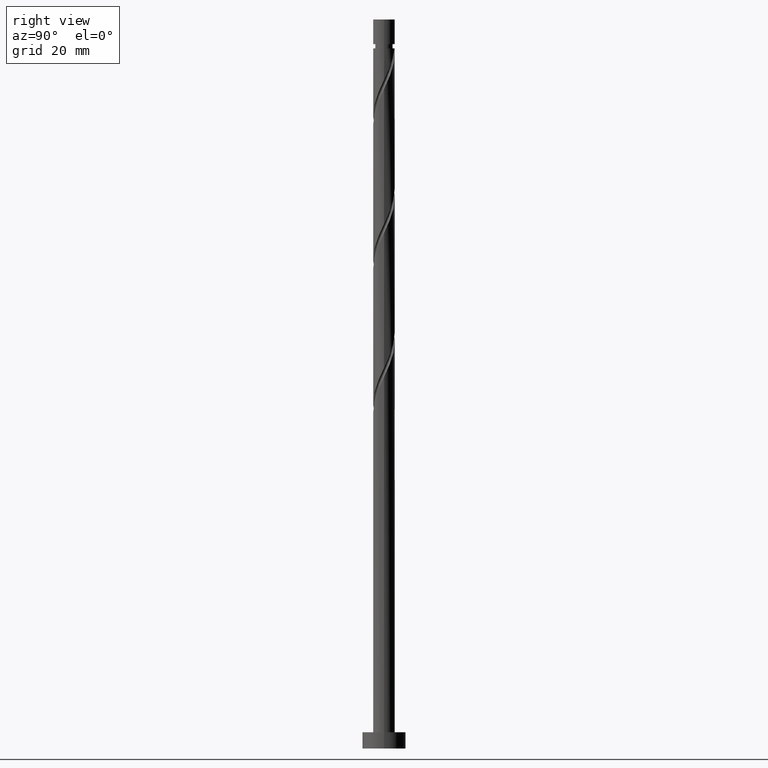
[diagram: clean part render]
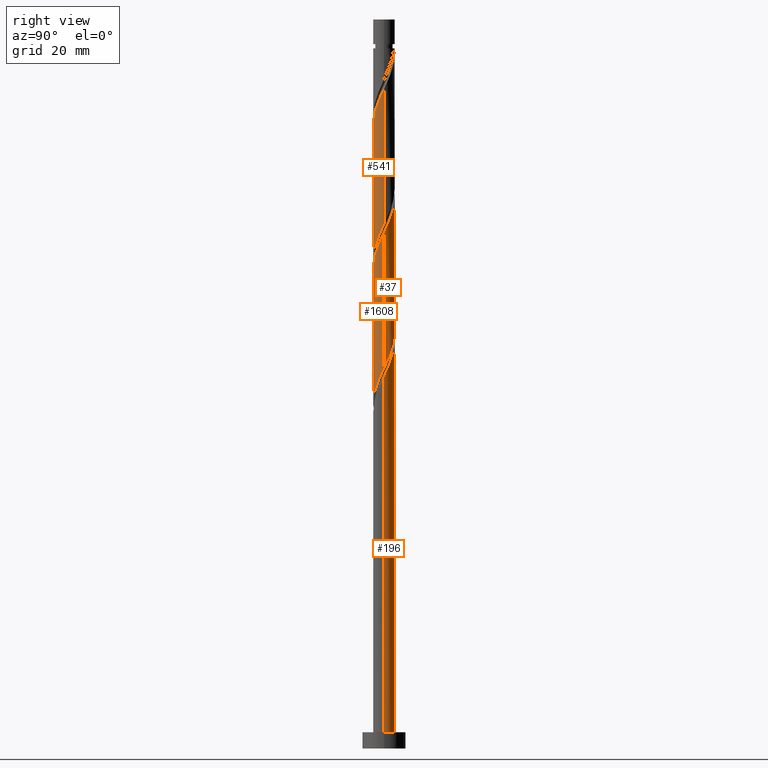
[diagram: same view with one multi-face feature highlighted, each face labeled with its STEP entity id]
A machine part, right view. The highlighted faces form ONE feature: a constant-radius fillet chain: 4 tangent blend faces with common blend radius 2 mm. The faces share edges in the B-rep.
Their STEP definitions:
[1] entity #541 (Cylinder):
#20 = CARTESIAN_POINT ( 'NONE',  ( 1.948211798543802997, -0.4521844623765091109, 121.1738523423620109 ) ) ;
#36 = EDGE_CURVE ( 'NONE', #1003, #450, #98, .T. ) ;
#40 = CARTESIAN_POINT ( 'NONE',  ( 1.741900447066339730, -0.9827425057002956432, 119.9617311302407927 ) ) ;
#63 = CARTESIAN_POINT ( 'NONE',  ( 0.7248413235775366115, -1.864029252891264532, 92.08294325145293158 ) ) ;
#88 = CARTESIAN_POINT ( 'NONE',  ( -0.1161895186125006946, -2.017223038501449128, 90.26476143327111856 ) ) ;
#98 =( BOUNDED_CURVE ( )  B_SPLINE_CURVE ( 2, ( #824, #1105, #1250, #566, #179, #834, #1354, #1229, #205, #961, #63, #1473, #1338, #88, #471, #717, #100, #1238, #983, #340, #1078, #849, #1366, #694, #185 ),
 .UNSPECIFIED., .F., .T. ) 
 B_SPLINE_CURVE_WITH_KNOTS ( ( 3, 2, 2, 2, 2, 2, 2, 2, 2, 2, 2, 2, 3 ),
 ( 0.5545252162417515507, 0.5568181818181817677, 0.5681818181818182323, 0.5795454545454545858, 0.5909090909090909394, 0.6022727272727272929, 0.6136363636363636465, 0.6250000000000000000, 0.6363636363636363535, 0.6477272727272727071, 0.6590909090909090606, 0.6704545454545454142, 0.6795252162417514397 ),
 .UNSPECIFIED. ) 
 CURVE ( )  GEOMETRIC_REPRESENTATION_ITEM ( )  RATIONAL_B_SPLINE_CURVE ( ( 0.9061101570135574601, 0.9072237824201395684, 0.9090909090909168322, 0.8998376744372191816, 0.9090909090909168322, 0.8998376744372191816, 0.9090909090909168322, 0.8998376744372191816, 0.9090909090909168322, 0.8998376744372191816, 0.9090909090909168322, 0.8998376744372191816, 0.9090909090909168322, 0.8998376744372191816, 0.9090909090909168322, 0.8998376744372191816, 0.9090909090909168322, 0.8998376744372191816, 0.9090909090909168322, 0.8998376744372191816, 0.9090909090909168322, 0.8998376744372191816, 0.9090909090909168322, 0.9017048011079965564, 0.9061101570135573491 ) ) 
 REPRESENTATION_ITEM ( '' )  );
#100 = CARTESIAN_POINT ( 'NONE',  ( -0.9340691933046015860, -1.768478086411955363, 88.44657961508927713 ) ) ;
#156 = CARTESIAN_POINT ( 'NONE',  ( -1.996690616564942733, -0.1150068768444763023, 109.0526402211499288 ) ) ;
#173 = CARTESIAN_POINT ( 'NONE',  ( 0.9340691933046018081, -1.768478086411957806, 117.5374887059984133 ) ) ;
#179 = CARTESIAN_POINT ( 'NONE',  ( 1.883409435608316862, -0.6728810428757543427, 95.71930688781655761 ) ) ;
#185 = CARTESIAN_POINT ( 'NONE',  ( -2.000000000000000888, 1.420897966832164405E-15, 83.84148863984472655 ) ) ;
#205 = CARTESIAN_POINT ( 'NONE',  ( 1.220637884402354656, -1.584311571365223825, 93.29506446357416394 ) ) ;
#212 = CARTESIAN_POINT ( 'NONE',  ( 2.000000000000003553, 8.375819593957977622E-16, 122.1425796812429780 ) ) ;
#218 = DIRECTION ( 'NONE',  ( -0.000000000000000000, -0.000000000000000000, -1.000000000000000000 ) ) ;
#235 = CARTESIAN_POINT ( 'NONE',  ( 2.000000000000000000, 2.449293598294706414E-16, 135.0000000000000000 ) ) ;
#281 = CARTESIAN_POINT ( 'NONE',  ( 0.6798004310727959743, -1.902776961498555020, 116.9314280999377900 ) ) ;
#287 = CARTESIAN_POINT ( 'NONE',  ( -0.1703224295138033306, -1.992734370156876933, 115.1132462817559627 ) ) ;
#293 = CARTESIAN_POINT ( 'NONE',  ( -0.4568343776401068146, -1.968245701812303627, 114.5071856756953821 ) ) ;
#340 = CARTESIAN_POINT ( 'NONE',  ( -1.600603406160404862, -1.233189980288573295, 86.62839779690752096 ) ) ;
#402 = CARTESIAN_POINT ( 'NONE',  ( 0.3979949748426478973, -1.960000000000003073, 116.3253674938771809 ) ) ;
#411 = CARTESIAN_POINT ( 'NONE',  ( 2.000000000000003109, -0.2290578547702452894, 121.6566197282716928 ) ) ;
#418 = CARTESIAN_POINT ( 'NONE',  ( -1.786663747202084984, -0.9436744384215546289, 110.8708220393317418 ) ) ;
#437 = FACE_OUTER_BOUND ( 'NONE', #1443, .T. ) ;
#450 = VERTEX_POINT ( 'NONE', #947 ) ;
#471 = CARTESIAN_POINT ( 'NONE',  ( -0.3979949748426481193, -1.960000000000000409, 89.65870082721049528 ) ) ;
#541 = ADVANCED_FACE ( 'NONE', ( #437 ), #962, .T. ) ;
#548 = CARTESIAN_POINT ( 'NONE',  ( -2.000000000000000000, 0.000000000000000000, 135.0000000000000000 ) ) ;
#566 = CARTESIAN_POINT ( 'NONE',  ( 1.980155124014551626, -0.4020876473299551668, 96.32536749387718089 ) ) ;
#652 = CARTESIAN_POINT ( 'NONE',  ( 0.1161895186124999452, -2.017223038501450905, 115.7193068878165718 ) ) ;
#666 = CARTESIAN_POINT ( 'NONE',  ( 1.394470680848407973, -1.433684595806968387, 118.7496099181195888 ) ) ;
#677 = CARTESIAN_POINT ( 'NONE',  ( 2.000000000000003553, 8.375819593957977622E-16, 122.1425796812429780 ) ) ;
#681 =( BOUNDED_CURVE ( )  B_SPLINE_CURVE ( 2, ( #786, #1305, #156, #1420, #1570, #418, #1058, #1067, #1563, #1586, #1578, #293, #287, #652, #402, #281, #173, #1436, #666, #1307, #40, #1314, #20, #411, #677 ),
 .UNSPECIFIED., .F., .T. ) 
 B_SPLINE_CURVE_WITH_KNOTS ( ( 3, 2, 2, 2, 2, 2, 2, 2, 2, 2, 2, 2, 3 ),
 ( 0.5545252162417513286, 0.5568181818181818787, 0.5681818181818181213, 0.5795454545454545858, 0.5909090909090908283, 0.6022727272727272929, 0.6136363636363636465, 0.6250000000000000000, 0.6363636363636363535, 0.6477272727272727071, 0.6590909090909091717, 0.6704545454545454142, 0.6795252162417514397 ),
 .UNSPECIFIED. ) 
 CURVE ( )  GEOMETRIC_REPRESENTATION_ITEM ( )  RATIONAL_B_SPLINE_CURVE ( ( 0.9061101570135619010, 0.9072237824201441203, 0.9090909090909216062, 0.8998376744372238445, 0.9090909090909216062, 0.8998376744372238445, 0.9090909090909216062, 0.8998376744372238445, 0.9090909090909216062, 0.8998376744372238445, 0.9090909090909216062, 0.8998376744372238445, 0.9090909090909216062, 0.8998376744372238445, 0.9090909090909216062, 0.8998376744372238445, 0.9090909090909216062, 0.8998376744372238445, 0.9090909090909216062, 0.8998376744372238445, 0.9090909090909216062, 0.8998376744372238445, 0.9090909090909216062, 0.9017048011080013303, 0.9061101570135620120 ) ) 
 REPRESENTATION_ITEM ( '' )  );
#694 = CARTESIAN_POINT ( 'NONE',  ( -2.000000000000001332, -0.2290578547702424306, 84.32744859281602601 ) ) ;
#717 = CARTESIAN_POINT ( 'NONE',  ( -0.6798004310727958632, -1.902776961498552355, 89.05264022114992883 ) ) ;
#741 = ORIENTED_EDGE ( 'NONE', *, *, #36, .F. ) ;
#762 = CARTESIAN_POINT ( 'NONE',  ( -2.000000000000002665, 1.854645767233552216E-15, 108.8092463479096494 ) ) ;
#786 = CARTESIAN_POINT ( 'NONE',  ( -2.000000000000002665, 1.854645767233552216E-15, 108.8092463479096494 ) ) ;
#824 = CARTESIAN_POINT ( 'NONE',  ( 2.000000000000000444, -1.854645767233561682E-15, 97.17482197317805515 ) ) ;
#834 = CARTESIAN_POINT ( 'NONE',  ( 1.786663747202082542, -0.9436744384215538517, 95.11324628175596274 ) ) ;
#842 = DIRECTION ( 'NONE',  ( -0.000000000000000000, -0.000000000000000000, -1.000000000000000000 ) ) ;
#849 = CARTESIAN_POINT ( 'NONE',  ( -1.883197487972271933, -0.7322950311120145495, 85.41627658478623175 ) ) ;
#850 = DIRECTION ( 'NONE',  ( -1.000000000000000000, 0.000000000000000000, 0.000000000000000000 ) ) ;
#917 = CARTESIAN_POINT ( 'NONE',  ( 2.000000000000000444, -1.854645767233561682E-15, 97.17482197317805515 ) ) ;
#947 = CARTESIAN_POINT ( 'NONE',  ( -2.000000000000000888, 1.420897966832164405E-15, 83.84148863984472655 ) ) ;
#961 = CARTESIAN_POINT ( 'NONE',  ( 0.9928482695149674075, -1.759812803970228101, 92.68900385751351223 ) ) ;
#962 = CYLINDRICAL_SURFACE ( 'NONE', #1512, 2.000000000000000000 ) ;
#965 = LINE ( 'NONE', #235, #1341 ) ;
#983 = CARTESIAN_POINT ( 'NONE',  ( -1.394470680848406197, -1.433684595806965723, 87.23445840296807319 ) ) ;
#992 = ORIENTED_EDGE ( 'NONE', *, *, #1625, .F. ) ;
#1003 = VERTEX_POINT ( 'NONE', #917 ) ;
#1030 = DIRECTION ( 'NONE',  ( -0.000000000000000000, -0.000000000000000000, -1.000000000000000000 ) ) ;
#1031 = ORIENTED_EDGE ( 'NONE', *, *, #1219, .F. ) ;
#1058 = CARTESIAN_POINT ( 'NONE',  ( -1.617545623245914443, -1.176242388590887922, 111.4768826453923083 ) ) ;
#1067 = CARTESIAN_POINT ( 'NONE',  ( -1.448427499289744347, -1.408810338760221770, 112.0829432514529174 ) ) ;
#1078 = CARTESIAN_POINT ( 'NONE',  ( -1.741900447066338176, -0.9827425057002938669, 86.02233719084684083 ) ) ;
#1079 = EDGE_CURVE ( 'NONE', #1454, #450, #1433, .T. ) ;
#1105 = CARTESIAN_POINT ( 'NONE',  ( 2.000000000000000000, -0.05755105304765150559, 97.05272396845982996 ) ) ;
#1203 = ORIENTED_EDGE ( 'NONE', *, *, #1079, .T. ) ;
#1215 = VECTOR ( 'NONE', #1030, 1000.000000000000000 ) ;
#1219 = EDGE_CURVE ( 'NONE', #1454, #1646, #681, .T. ) ;
#1229 = CARTESIAN_POINT ( 'NONE',  ( 1.448427499289742570, -1.408810338760219549, 93.90112506963474459 ) ) ;
#1238 = CARTESIAN_POINT ( 'NONE',  ( -1.188337955536407531, -1.634179211325359038, 87.84051900902868226 ) ) ;
#1250 = CARTESIAN_POINT ( 'NONE',  ( 1.996690616564939846, -0.1150068768444769546, 96.93142809993777576 ) ) ;
#1305 = CARTESIAN_POINT ( 'NONE',  ( -2.000000000000002665, -0.05755105304764292218, 108.9313443526278604 ) ) ;
#1307 = CARTESIAN_POINT ( 'NONE',  ( 1.600603406160406417, -1.233189980288575516, 119.3556705241802405 ) ) ;
#1314 = CARTESIAN_POINT ( 'NONE',  ( 1.883197487972273931, -0.7322950311120155487, 120.5677917363014302 ) ) ;
#1338 = CARTESIAN_POINT ( 'NONE',  ( 0.1703224295138023869, -1.992734370156875157, 90.87082203933172764 ) ) ;
#1341 = VECTOR ( 'NONE', #842, 1000.000000000000000 ) ;
#1354 = CARTESIAN_POINT ( 'NONE',  ( 1.617545623245912001, -1.176242388590886812, 94.50718567569533946 ) ) ;
#1366 = CARTESIAN_POINT ( 'NONE',  ( -1.948211798543800111, -0.4521844623765081117, 84.81021597872566531 ) ) ;
#1420 = CARTESIAN_POINT ( 'NONE',  ( -1.980155124014554291, -0.4020876473299550002, 109.6587008272104953 ) ) ;
#1433 = LINE ( 'NONE', #548, #1215 ) ;
#1436 = CARTESIAN_POINT ( 'NONE',  ( 1.188337955536409085, -1.634179211325361036, 118.1435493120590081 ) ) ;
#1443 = EDGE_LOOP ( 'NONE', ( #992, #1031, #1203, #741 ) ) ;
#1454 = VERTEX_POINT ( 'NONE', #762 ) ;
#1473 = CARTESIAN_POINT ( 'NONE',  ( 0.4568343776401063705, -1.968245701812300963, 91.47688264539233671 ) ) ;
#1498 = CARTESIAN_POINT ( 'NONE',  ( 0.000000000000000000, 0.000000000000000000, 135.0000000000000000 ) ) ;
#1512 = AXIS2_PLACEMENT_3D ( 'NONE', #1498, #218, #850 ) ;
#1563 = CARTESIAN_POINT ( 'NONE',  ( -1.220637884402356432, -1.584311571365225157, 112.6890038575135407 ) ) ;
#1570 = CARTESIAN_POINT ( 'NONE',  ( -1.883409435608319304, -0.6728810428757545647, 110.2647614332711328 ) ) ;
#1578 = CARTESIAN_POINT ( 'NONE',  ( -0.7248413235775381658, -1.864029252891266308, 113.9011250696347588 ) ) ;
#1586 = CARTESIAN_POINT ( 'NONE',  ( -0.9928482695149695170, -1.759812803970229433, 113.2950644635741355 ) ) ;
#1625 = EDGE_CURVE ( 'NONE', #1646, #1003, #965, .T. ) ;
#1646 = VERTEX_POINT ( 'NONE', #212 ) ;
[2] entity #37 (Cylinder):
#37 = ADVANCED_FACE ( 'NONE', ( #729 ), #77, .T. ) ;
#49 = CARTESIAN_POINT ( 'NONE',  ( 2.000000000000000444, -1.854645767233561682E-15, 70.50815530651139795 ) ) ;
#56 = VERTEX_POINT ( 'NONE', #1116 ) ;
#77 = CYLINDRICAL_SURFACE ( 'NONE', #809, 2.000000000000000000 ) ;
#129 = LINE ( 'NONE', #628, #272 ) ;
#155 = CARTESIAN_POINT ( 'NONE',  ( 0.3979949748426483414, 1.960000000000000409, 76.32536749387719510 ) ) ;
#157 = ORIENTED_EDGE ( 'NONE', *, *, #813, .F. ) ;
#165 = ORIENTED_EDGE ( 'NONE', *, *, #255, .F. ) ;
#233 = CARTESIAN_POINT ( 'NONE',  ( -0.1161895186124996815, 2.017223038501450905, 102.3859735544832432 ) ) ;
#238 = CARTESIAN_POINT ( 'NONE',  ( -1.883409435608316862, 0.6728810428757542317, 82.38597355448325743 ) ) ;
#255 = EDGE_CURVE ( 'NONE', #450, #1240, #604, .T. ) ;
#267 = DIRECTION ( 'NONE',  ( -0.000000000000000000, -0.000000000000000000, -1.000000000000000000 ) ) ;
#272 = VECTOR ( 'NONE', #267, 1000.000000000000000 ) ;
#332 = CARTESIAN_POINT ( 'NONE',  ( 0.4568343776401070921, 1.968245701812303627, 101.1738523423620393 ) ) ;
#356 = CARTESIAN_POINT ( 'NONE',  ( 1.883409435608319304, 0.6728810428757541207, 96.93142809993778997 ) ) ;
#362 = CARTESIAN_POINT ( 'NONE',  ( -1.980155124014551626, 0.4020876473299547782, 82.99203416054385229 ) ) ;
#384 = CARTESIAN_POINT ( 'NONE',  ( 1.188337955536407531, 1.634179211325359038, 74.50718567569538209 ) ) ;
#396 = CARTESIAN_POINT ( 'NONE',  ( -0.4568343776401060374, 1.968245701812300963, 78.14354931205900812 ) ) ;
#450 = VERTEX_POINT ( 'NONE', #947 ) ;
#475 = CARTESIAN_POINT ( 'NONE',  ( -2.000000000000002665, 0.2290578547702481760, 108.3232863949383216 ) ) ;
#485 = CARTESIAN_POINT ( 'NONE',  ( -1.741900447066339730, 0.9827425057002954212, 106.6283977969074925 ) ) ;
#491 =( BOUNDED_CURVE ( )  B_SPLINE_CURVE ( 2, ( #1502, #1088, #1342, #853, #356, #975, #607, #1371, #1648, #828, #1489, #332, #1478, #233, #734, #840, #865, #1609, #596, #1641, #485, #818, #585, #475, #1382 ),
 .UNSPECIFIED., .F., .T. ) 
 B_SPLINE_CURVE_WITH_KNOTS ( ( 3, 2, 2, 2, 2, 2, 2, 2, 2, 2, 2, 2, 3 ),
 ( 0.4295252162417512731, 0.4318181818181817677, 0.4431818181818182323, 0.4545454545454545858, 0.4659090909090909394, 0.4772727272727272929, 0.4886363636363636465, 0.5000000000000000000, 0.5113636363636363535, 0.5227272727272727071, 0.5340909090909091717, 0.5454545454545454142, 0.5545252162417513286 ),
 .UNSPECIFIED. ) 
 CURVE ( )  GEOMETRIC_REPRESENTATION_ITEM ( )  RATIONAL_B_SPLINE_CURVE ( ( 0.9061101570135619010, 0.9072237824201440093, 0.9090909090909216062, 0.8998376744372238445, 0.9090909090909216062, 0.8998376744372238445, 0.9090909090909216062, 0.8998376744372238445, 0.9090909090909216062, 0.8998376744372238445, 0.9090909090909216062, 0.8998376744372238445, 0.9090909090909216062, 0.8998376744372238445, 0.9090909090909216062, 0.8998376744372238445, 0.9090909090909216062, 0.8998376744372238445, 0.9090909090909216062, 0.8998376744372238445, 0.9090909090909216062, 0.8998376744372238445, 0.9090909090909216062, 0.9017048011080013303, 0.9061101570135619010 ) ) 
 REPRESENTATION_ITEM ( '' )  );
#510 = CARTESIAN_POINT ( 'NONE',  ( 1.741900447066338176, 0.9827425057002943110, 72.68900385751352644 ) ) ;
#540 = CARTESIAN_POINT ( 'NONE',  ( 2.000000000000001332, 0.2290578547702417644, 70.99411525948271162 ) ) ;
#548 = CARTESIAN_POINT ( 'NONE',  ( -2.000000000000000000, 0.000000000000000000, 135.0000000000000000 ) ) ;
#585 = CARTESIAN_POINT ( 'NONE',  ( -1.948211798543802109, 0.4521844623765092774, 107.8405190090286965 ) ) ;
#596 = CARTESIAN_POINT ( 'NONE',  ( -1.394470680848407973, 1.433684595806968387, 105.4162765847862460 ) ) ;
#602 = DIRECTION ( 'NONE',  ( -0.000000000000000000, -0.000000000000000000, -1.000000000000000000 ) ) ;
#604 =( BOUNDED_CURVE ( )  B_SPLINE_CURVE ( 2, ( #739, #1260, #614, #362, #238, #623, #1653, #1138, #1009, #1158, #890, #396, #1568, #1035, #155, #915, #1191, #384, #1547, #1423, #510, #655, #1282, #540, #775 ),
 .UNSPECIFIED., .F., .T. ) 
 B_SPLINE_CURVE_WITH_KNOTS ( ( 3, 2, 2, 2, 2, 2, 2, 2, 2, 2, 2, 2, 3 ),
 ( 0.6795252162417514397, 0.6818181818181817677, 0.6931818181818182323, 0.7045454545454545858, 0.7159090909090909394, 0.7272727272727272929, 0.7386363636363636465, 0.7500000000000000000, 0.7613636363636363535, 0.7727272727272727071, 0.7840909090909090606, 0.7954545454545454142, 0.8045252162417514397 ),
 .UNSPECIFIED. ) 
 CURVE ( )  GEOMETRIC_REPRESENTATION_ITEM ( )  RATIONAL_B_SPLINE_CURVE ( ( 0.9061101570135573491, 0.9072237824201394574, 0.9090909090909168322, 0.8998376744372191816, 0.9090909090909168322, 0.8998376744372191816, 0.9090909090909168322, 0.8998376744372191816, 0.9090909090909168322, 0.8998376744372191816, 0.9090909090909168322, 0.8998376744372191816, 0.9090909090909168322, 0.8998376744372191816, 0.9090909090909168322, 0.8998376744372191816, 0.9090909090909168322, 0.8998376744372191816, 0.9090909090909168322, 0.8998376744372191816, 0.9090909090909168322, 0.8998376744372191816, 0.9090909090909168322, 0.9017048011079965564, 0.9061101570135573491 ) ) 
 REPRESENTATION_ITEM ( '' )  );
#607 = CARTESIAN_POINT ( 'NONE',  ( 1.617545623245914665, 1.176242388590887034, 98.14354931205896548 ) ) ;
#614 = CARTESIAN_POINT ( 'NONE',  ( -1.996690616564940512, 0.1150068768444766493, 83.59809476660447558 ) ) ;
#623 = CARTESIAN_POINT ( 'NONE',  ( -1.786663747202082542, 0.9436744384215538517, 81.77991294842263414 ) ) ;
#628 = CARTESIAN_POINT ( 'NONE',  ( 2.000000000000000000, 2.449293598294706414E-16, 135.0000000000000000 ) ) ;
#655 = CARTESIAN_POINT ( 'NONE',  ( 1.883197487972272155, 0.7322950311120136613, 72.08294325145293158 ) ) ;
#729 = FACE_OUTER_BOUND ( 'NONE', #1252, .T. ) ;
#734 = CARTESIAN_POINT ( 'NONE',  ( -0.3979949748426476752, 1.960000000000003073, 102.9920341605438523 ) ) ;
#739 = CARTESIAN_POINT ( 'NONE',  ( -2.000000000000000888, 1.420897966832164405E-15, 83.84148863984472655 ) ) ;
#762 = CARTESIAN_POINT ( 'NONE',  ( -2.000000000000002665, 1.854645767233552216E-15, 108.8092463479096494 ) ) ;
#775 = CARTESIAN_POINT ( 'NONE',  ( 2.000000000000000444, -1.854645767233561682E-15, 70.50815530651139795 ) ) ;
#809 = AXIS2_PLACEMENT_3D ( 'NONE', #1637, #602, #1596 ) ;
#813 = EDGE_CURVE ( 'NONE', #56, #1454, #491, .T. ) ;
#818 = CARTESIAN_POINT ( 'NONE',  ( -1.883197487972273709, 0.7322950311120159927, 107.2344584029680874 ) ) ;
#828 = CARTESIAN_POINT ( 'NONE',  ( 0.9928482695149686288, 1.759812803970229877, 99.96173113024086376 ) ) ;
#840 = CARTESIAN_POINT ( 'NONE',  ( -0.6798004310727963073, 1.902776961498554353, 103.5980947666044614 ) ) ;
#853 = CARTESIAN_POINT ( 'NONE',  ( 1.980155124014554291, 0.4020876473299547227, 96.32536749387720931 ) ) ;
#862 = ORIENTED_EDGE ( 'NONE', *, *, #1079, .F. ) ;
#865 = CARTESIAN_POINT ( 'NONE',  ( -0.9340691933046023632, 1.768478086411957362, 104.2041553726650420 ) ) ;
#890 = CARTESIAN_POINT ( 'NONE',  ( -0.7248413235775366115, 1.864029252891264532, 78.74960991811960298 ) ) ;
#915 = CARTESIAN_POINT ( 'NONE',  ( 0.6798004310727960853, 1.902776961498552355, 75.71930688781654339 ) ) ;
#940 = EDGE_CURVE ( 'NONE', #56, #1240, #129, .T. ) ;
#947 = CARTESIAN_POINT ( 'NONE',  ( -2.000000000000000888, 1.420897966832164405E-15, 83.84148863984472655 ) ) ;
#975 = CARTESIAN_POINT ( 'NONE',  ( 1.786663747202085872, 0.9436744384215539627, 97.53748870599839904 ) ) ;
#1009 = CARTESIAN_POINT ( 'NONE',  ( -1.220637884402354656, 1.584311571365223825, 79.96173113024080692 ) ) ;
#1030 = DIRECTION ( 'NONE',  ( -0.000000000000000000, -0.000000000000000000, -1.000000000000000000 ) ) ;
#1035 = CARTESIAN_POINT ( 'NONE',  ( 0.1161895186125001117, 2.017223038501448684, 76.93142809993776154 ) ) ;
#1079 = EDGE_CURVE ( 'NONE', #1454, #450, #1433, .T. ) ;
#1088 = CARTESIAN_POINT ( 'NONE',  ( 2.000000000000003553, 0.05755105304764360219, 95.59801101929453182 ) ) ;
#1116 = CARTESIAN_POINT ( 'NONE',  ( 2.000000000000003553, 8.375819593957977622E-16, 95.47591301457629243 ) ) ;
#1138 = CARTESIAN_POINT ( 'NONE',  ( -1.448427499289741904, 1.408810338760219993, 80.56779173630143021 ) ) ;
#1158 = CARTESIAN_POINT ( 'NONE',  ( -0.9928482695149676296, 1.759812803970227879, 79.35567052418022627 ) ) ;
#1191 = CARTESIAN_POINT ( 'NONE',  ( 0.9340691933046018081, 1.768478086411955363, 75.11324628175599116 ) ) ;
#1215 = VECTOR ( 'NONE', #1030, 1000.000000000000000 ) ;
#1240 = VERTEX_POINT ( 'NONE', #49 ) ;
#1252 = EDGE_LOOP ( 'NONE', ( #157, #1380, #165, #862 ) ) ;
#1260 = CARTESIAN_POINT ( 'NONE',  ( -2.000000000000000888, 0.05755105304764834839, 83.71939063512651558 ) ) ;
#1282 = CARTESIAN_POINT ( 'NONE',  ( 1.948211798543800111, 0.4521844623765076121, 71.47688264539230829 ) ) ;
#1342 = CARTESIAN_POINT ( 'NONE',  ( 1.996690616564942733, 0.1150068768444760664, 95.71930688781657182 ) ) ;
#1371 = CARTESIAN_POINT ( 'NONE',  ( 1.448427499289745013, 1.408810338760220882, 98.74960991811961719 ) ) ;
#1380 = ORIENTED_EDGE ( 'NONE', *, *, #940, .T. ) ;
#1382 = CARTESIAN_POINT ( 'NONE',  ( -2.000000000000002665, 1.854645767233552216E-15, 108.8092463479096494 ) ) ;
#1423 = CARTESIAN_POINT ( 'NONE',  ( 1.600603406160404418, 1.233189980288573517, 73.29506446357413552 ) ) ;
#1433 = LINE ( 'NONE', #548, #1215 ) ;
#1454 = VERTEX_POINT ( 'NONE', #762 ) ;
#1478 = CARTESIAN_POINT ( 'NONE',  ( 0.1703224295138035527, 1.992734370156876933, 101.7799129484226199 ) ) ;
#1489 = CARTESIAN_POINT ( 'NONE',  ( 0.7248413235775373886, 1.864029252891266530, 100.5677917363014302 ) ) ;
#1502 = CARTESIAN_POINT ( 'NONE',  ( 2.000000000000003553, 8.375819593957977622E-16, 95.47591301457629243 ) ) ;
#1547 = CARTESIAN_POINT ( 'NONE',  ( 1.394470680848405975, 1.433684595806966389, 73.90112506963474459 ) ) ;
#1568 = CARTESIAN_POINT ( 'NONE',  ( -0.1703224295138029143, 1.992734370156874713, 77.53748870599835641 ) ) ;
#1596 = DIRECTION ( 'NONE',  ( -1.000000000000000000, 0.000000000000000000, 0.000000000000000000 ) ) ;
#1609 = CARTESIAN_POINT ( 'NONE',  ( -1.188337955536408863, 1.634179211325361480, 104.8102159787256795 ) ) ;
#1637 = CARTESIAN_POINT ( 'NONE',  ( 0.000000000000000000, 0.000000000000000000, 135.0000000000000000 ) ) ;
#1641 = CARTESIAN_POINT ( 'NONE',  ( -1.600603406160406639, 1.233189980288575072, 106.0223371908468835 ) ) ;
#1648 = CARTESIAN_POINT ( 'NONE',  ( 1.220637884402356210, 1.584311571365225380, 99.35567052418019784 ) ) ;
#1653 = CARTESIAN_POINT ( 'NONE',  ( -1.617545623245912001, 1.176242388590886812, 81.17385234236199665 ) ) ;
[3] entity #1608 (Cylinder):
#33 = CARTESIAN_POINT ( 'NONE',  ( 0.1703224295138023869, -1.992734370156875157, 64.20415537266505623 ) ) ;
#49 = CARTESIAN_POINT ( 'NONE',  ( 2.000000000000000444, -1.854645767233561682E-15, 70.50815530651139795 ) ) ;
#56 = VERTEX_POINT ( 'NONE', #1116 ) ;
#71 = VERTEX_POINT ( 'NONE', #430 ) ;
#111 = CARTESIAN_POINT ( 'NONE',  ( -0.4568343776401068146, -1.968245701812303627, 87.84051900902869647 ) ) ;
#117 = CYLINDRICAL_SURFACE ( 'NONE', #1538, 2.000000000000000000 ) ;
#122 = CARTESIAN_POINT ( 'NONE',  ( 0.9340691933046018081, -1.768478086411957806, 90.87082203933172764 ) ) ;
#129 = LINE ( 'NONE', #628, #272 ) ;
#143 = CARTESIAN_POINT ( 'NONE',  ( -1.394470680848406197, -1.433684595806965723, 60.56779173630140889 ) ) ;
#160 = CARTESIAN_POINT ( 'NONE',  ( -2.000000000000003109, 4.636614418083881526E-15, 82.14257968124296383 ) ) ;
#186 = VECTOR ( 'NONE', #1143, 1000.000000000000000 ) ;
#234 = CARTESIAN_POINT ( 'NONE',  ( -0.1703224295138033306, -1.992734370156876933, 88.44657961508927713 ) ) ;
#253 = CARTESIAN_POINT ( 'NONE',  ( 0.4568343776401063705, -1.968245701812300963, 64.81021597872565110 ) ) ;
#257 = CARTESIAN_POINT ( 'NONE',  ( -1.980155124014554291, -0.4020876473299550002, 82.99203416054388072 ) ) ;
#260 = CARTESIAN_POINT ( 'NONE',  ( -0.6798004310727958632, -1.902776961498552355, 62.38597355448322190 ) ) ;
#267 = DIRECTION ( 'NONE',  ( -0.000000000000000000, -0.000000000000000000, -1.000000000000000000 ) ) ;
#272 = VECTOR ( 'NONE', #267, 1000.000000000000000 ) ;
#275 = CARTESIAN_POINT ( 'NONE',  ( 1.617545623245912001, -1.176242388590886812, 67.84051900902866805 ) ) ;
#345 = CARTESIAN_POINT ( 'NONE',  ( 0.1161895186124999452, -2.017223038501450905, 89.05264022114991462 ) ) ;
#357 = CARTESIAN_POINT ( 'NONE',  ( 1.741900447066339730, -0.9827425057002956432, 93.29506446357416394 ) ) ;
#366 = CARTESIAN_POINT ( 'NONE',  ( 1.948211798543802997, -0.4521844623765091109, 94.50718567569532524 ) ) ;
#371 = CARTESIAN_POINT ( 'NONE',  ( -1.996690616564942733, -0.1150068768444763023, 82.38597355448324322 ) ) ;
#376 = CARTESIAN_POINT ( 'NONE',  ( -1.188337955536407531, -1.634179211325359038, 61.17385234236201796 ) ) ;
#380 = CARTESIAN_POINT ( 'NONE',  ( -1.617545623245914443, -1.176242388590887922, 84.81021597872566531 ) ) ;
#430 = CARTESIAN_POINT ( 'NONE',  ( -2.000000000000000888, 1.420897966832164405E-15, 57.17482197317807646 ) ) ;
#466 = CARTESIAN_POINT ( 'NONE',  ( -1.448427499289744347, -1.408810338760221770, 85.41627658478626017 ) ) ;
#509 = CARTESIAN_POINT ( 'NONE',  ( 0.7248413235775366115, -1.864029252891264532, 65.41627658478627438 ) ) ;
#542 = CARTESIAN_POINT ( 'NONE',  ( -2.000000000000000000, -0.2290578547702478984, 57.66078192614936881 ) ) ;
#598 = FACE_OUTER_BOUND ( 'NONE', #1604, .T. ) ;
#608 = CARTESIAN_POINT ( 'NONE',  ( 2.000000000000003109, -0.2290578547702472045, 94.98995306160499297 ) ) ;
#616 = ORIENTED_EDGE ( 'NONE', *, *, #1014, .F. ) ;
#628 = CARTESIAN_POINT ( 'NONE',  ( 2.000000000000000000, 2.449293598294706414E-16, 135.0000000000000000 ) ) ;
#640 = CARTESIAN_POINT ( 'NONE',  ( 0.3979949748426478973, -1.960000000000003073, 89.65870082721050949 ) ) ;
#670 = CARTESIAN_POINT ( 'NONE',  ( 1.448427499289742570, -1.408810338760219549, 67.23445840296807319 ) ) ;
#731 = VERTEX_POINT ( 'NONE', #160 ) ;
#744 = CARTESIAN_POINT ( 'NONE',  ( 0.6798004310727959743, -1.902776961498555020, 90.26476143327110435 ) ) ;
#752 = DIRECTION ( 'NONE',  ( -0.000000000000000000, -0.000000000000000000, -1.000000000000000000 ) ) ;
#766 = CARTESIAN_POINT ( 'NONE',  ( 1.786663747202082542, -0.9436744384215538517, 68.44657961508927713 ) ) ;
#773 = CARTESIAN_POINT ( 'NONE',  ( 1.220637884402354656, -1.584311571365223825, 66.62839779690747832 ) ) ;
#782 = CARTESIAN_POINT ( 'NONE',  ( 0.9928482695149674075, -1.759812803970228101, 66.02233719084688346 ) ) ;
#785 = CARTESIAN_POINT ( 'NONE',  ( 2.000000000000000444, -1.854645767233561682E-15, 70.50815530651139795 ) ) ;
#793 =( BOUNDED_CURVE ( )  B_SPLINE_CURVE ( 2, ( #1278, #1006, #371, #257, #1503, #1263, #380, #466, #866, #1521, #1383, #111, #234, #345, #640, #744, #122, #881, #1408, #1513, #357, #1656, #366, #608, #875 ),
 .UNSPECIFIED., .F., .T. ) 
 B_SPLINE_CURVE_WITH_KNOTS ( ( 3, 2, 2, 2, 2, 2, 2, 2, 2, 2, 2, 2, 3 ),
 ( 0.3045252162417511621, 0.3068181818181817677, 0.3181818181818182323, 0.3295454545454545858, 0.3409090909090909394, 0.3522727272727272929, 0.3636363636363636465, 0.3750000000000000000, 0.3863636363636363535, 0.3977272727272727071, 0.4090909090909090606, 0.4204545454545454142, 0.4295252162417512731 ),
 .UNSPECIFIED. ) 
 CURVE ( )  GEOMETRIC_REPRESENTATION_ITEM ( )  RATIONAL_B_SPLINE_CURVE ( ( 0.9061101570135616790, 0.9072237824201438983, 0.9090909090909216062, 0.8998376744372238445, 0.9090909090909216062, 0.8998376744372238445, 0.9090909090909216062, 0.8998376744372238445, 0.9090909090909216062, 0.8998376744372238445, 0.9090909090909216062, 0.8998376744372238445, 0.9090909090909216062, 0.8998376744372238445, 0.9090909090909216062, 0.8998376744372238445, 0.9090909090909216062, 0.8998376744372238445, 0.9090909090909216062, 0.8998376744372238445, 0.9090909090909216062, 0.8998376744372238445, 0.9090909090909216062, 0.9017048011080013303, 0.9061101570135619010 ) ) 
 REPRESENTATION_ITEM ( '' )  );
#838 = ORIENTED_EDGE ( 'NONE', *, *, #1414, .F. ) ;
#866 = CARTESIAN_POINT ( 'NONE',  ( -1.220637884402356432, -1.584311571365225157, 86.02233719084685504 ) ) ;
#867 = DIRECTION ( 'NONE',  ( -1.000000000000000000, 0.000000000000000000, 0.000000000000000000 ) ) ;
#875 = CARTESIAN_POINT ( 'NONE',  ( 2.000000000000003553, 8.375819593957977622E-16, 95.47591301457629243 ) ) ;
#881 = CARTESIAN_POINT ( 'NONE',  ( 1.188337955536409085, -1.634179211325361036, 91.47688264539233671 ) ) ;
#887 = CARTESIAN_POINT ( 'NONE',  ( -1.600603406160404862, -1.233189980288573295, 59.96173113024080692 ) ) ;
#940 = EDGE_CURVE ( 'NONE', #56, #1240, #129, .T. ) ;
#1006 = CARTESIAN_POINT ( 'NONE',  ( -2.000000000000003553, -0.05755105304764096541, 82.26467768596117480 ) ) ;
#1014 = EDGE_CURVE ( 'NONE', #1240, #71, #1064, .T. ) ;
#1042 = CARTESIAN_POINT ( 'NONE',  ( 1.980155124014551626, -0.4020876473299551668, 69.65870082721049528 ) ) ;
#1064 =( BOUNDED_CURVE ( )  B_SPLINE_CURVE ( 2, ( #785, #1559, #1428, #1042, #1156, #766, #275, #670, #773, #782, #509, #253, #33, #1189, #1412, #260, #1292, #376, #143, #887, #1405, #1175, #1442, #542, #1321 ),
 .UNSPECIFIED., .F., .T. ) 
 B_SPLINE_CURVE_WITH_KNOTS ( ( 3, 2, 2, 2, 2, 2, 2, 2, 2, 2, 2, 2, 3 ),
 ( 0.8045252162417514397, 0.8068181818181817677, 0.8181818181818182323, 0.8295454545454545858, 0.8409090909090909394, 0.8522727272727272929, 0.8636363636363636465, 0.8750000000000000000, 0.8863636363636363535, 0.8977272727272727071, 0.9090909090909090606, 0.9204545454545454142, 0.9295252162417512176 ),
 .UNSPECIFIED. ) 
 CURVE ( )  GEOMETRIC_REPRESENTATION_ITEM ( )  RATIONAL_B_SPLINE_CURVE ( ( 0.9061101570135573491, 0.9072237824201394574, 0.9090909090909168322, 0.8998376744372191816, 0.9090909090909168322, 0.8998376744372191816, 0.9090909090909168322, 0.8998376744372191816, 0.9090909090909168322, 0.8998376744372191816, 0.9090909090909168322, 0.8998376744372191816, 0.9090909090909168322, 0.8998376744372191816, 0.9090909090909168322, 0.8998376744372191816, 0.9090909090909168322, 0.8998376744372191816, 0.9090909090909168322, 0.8998376744372191816, 0.9090909090909168322, 0.8998376744372191816, 0.9090909090909168322, 0.9017048011079967784, 0.9061101570135571270 ) ) 
 REPRESENTATION_ITEM ( '' )  );
#1116 = CARTESIAN_POINT ( 'NONE',  ( 2.000000000000003553, 8.375819593957977622E-16, 95.47591301457629243 ) ) ;
#1133 = CARTESIAN_POINT ( 'NONE',  ( -2.000000000000000000, 0.000000000000000000, 135.0000000000000000 ) ) ;
#1143 = DIRECTION ( 'NONE',  ( -0.000000000000000000, -0.000000000000000000, -1.000000000000000000 ) ) ;
#1156 = CARTESIAN_POINT ( 'NONE',  ( 1.883409435608316862, -0.6728810428757543427, 69.05264022114991462 ) ) ;
#1161 = ORIENTED_EDGE ( 'NONE', *, *, #940, .F. ) ;
#1175 = CARTESIAN_POINT ( 'NONE',  ( -1.883197487972271933, -0.7322950311120145495, 58.74960991811958166 ) ) ;
#1189 = CARTESIAN_POINT ( 'NONE',  ( -0.1161895186125006946, -2.017223038501449128, 63.59809476660445426 ) ) ;
#1240 = VERTEX_POINT ( 'NONE', #49 ) ;
#1263 = CARTESIAN_POINT ( 'NONE',  ( -1.786663747202084984, -0.9436744384215546289, 84.20415537266507044 ) ) ;
#1271 = LINE ( 'NONE', #1133, #186 ) ;
#1278 = CARTESIAN_POINT ( 'NONE',  ( -2.000000000000003109, 4.636614418083881526E-15, 82.14257968124296383 ) ) ;
#1292 = CARTESIAN_POINT ( 'NONE',  ( -0.9340691933046015860, -1.768478086411955363, 61.77991294842264836 ) ) ;
#1321 = CARTESIAN_POINT ( 'NONE',  ( -2.000000000000000888, 1.420897966832164405E-15, 57.17482197317806936 ) ) ;
#1340 = ORIENTED_EDGE ( 'NONE', *, *, #1571, .T. ) ;
#1383 = CARTESIAN_POINT ( 'NONE',  ( -0.7248413235775381658, -1.864029252891266308, 87.23445840296807319 ) ) ;
#1405 = CARTESIAN_POINT ( 'NONE',  ( -1.741900447066338176, -0.9827425057002938669, 59.35567052418021206 ) ) ;
#1408 = CARTESIAN_POINT ( 'NONE',  ( 1.394470680848407973, -1.433684595806968387, 92.08294325145294579 ) ) ;
#1412 = CARTESIAN_POINT ( 'NONE',  ( -0.3979949748426481193, -1.960000000000000409, 62.99203416054384519 ) ) ;
#1414 = EDGE_CURVE ( 'NONE', #731, #56, #793, .T. ) ;
#1428 = CARTESIAN_POINT ( 'NONE',  ( 1.996690616564939846, -0.1150068768444769546, 70.26476143327111856 ) ) ;
#1442 = CARTESIAN_POINT ( 'NONE',  ( -1.948211798543800111, -0.4521844623765081117, 58.14354931205898680 ) ) ;
#1503 = CARTESIAN_POINT ( 'NONE',  ( -1.883409435608319304, -0.6728810428757545647, 83.59809476660446137 ) ) ;
#1513 = CARTESIAN_POINT ( 'NONE',  ( 1.600603406160406417, -1.233189980288575516, 92.68900385751354065 ) ) ;
#1521 = CARTESIAN_POINT ( 'NONE',  ( -0.9928482695149695170, -1.759812803970229433, 86.62839779690749253 ) ) ;
#1538 = AXIS2_PLACEMENT_3D ( 'NONE', #1658, #752, #867 ) ;
#1559 = CARTESIAN_POINT ( 'NONE',  ( 2.000000000000000444, -0.05755105304764873697, 70.38605730179320119 ) ) ;
#1571 = EDGE_CURVE ( 'NONE', #731, #71, #1271, .T. ) ;
#1604 = EDGE_LOOP ( 'NONE', ( #1161, #838, #1340, #616 ) ) ;
#1608 = ADVANCED_FACE ( 'NONE', ( #598 ), #117, .T. ) ;
#1656 = CARTESIAN_POINT ( 'NONE',  ( 1.883197487972273931, -0.7322950311120155487, 93.90112506963474459 ) ) ;
#1658 = CARTESIAN_POINT ( 'NONE',  ( 0.000000000000000000, 0.000000000000000000, 135.0000000000000000 ) ) ;
[4] entity #196 (Cylinder):
#1 = CARTESIAN_POINT ( 'NONE',  ( 2.000000000000003553, 0.05755105304764360219, 68.93134435262786042 ) ) ;
#30 = CARTESIAN_POINT ( 'NONE',  ( 0.000000000000000000, 0.000000000000000000, 135.0000000000000000 ) ) ;
#48 = CARTESIAN_POINT ( 'NONE',  ( -1.394470680848407973, 1.433684595806968387, 52.08294325145292447 ) ) ;
#66 = ORIENTED_EDGE ( 'NONE', *, *, #923, .T. ) ;
#71 = VERTEX_POINT ( 'NONE', #430 ) ;
#81 = EDGE_CURVE ( 'NONE', #569, #1129, #1331, .T. ) ;
#104 = CARTESIAN_POINT ( 'NONE',  ( -2.000000000000003109, 4.636614418083881526E-15, 82.14257968124296383 ) ) ;
#107 = AXIS2_PLACEMENT_3D ( 'NONE', #710, #301, #702 ) ;
#141 = VECTOR ( 'NONE', #1168, 1000.000000000000000 ) ;
#160 = CARTESIAN_POINT ( 'NONE',  ( -2.000000000000003109, 4.636614418083881526E-15, 82.14257968124296383 ) ) ;
#163 = CARTESIAN_POINT ( 'NONE',  ( -1.448427499289741904, 1.408810338760219993, 53.90112506963475880 ) ) ;
#166 = CARTESIAN_POINT ( 'NONE',  ( -0.9340691933046023632, 1.768478086411957362, 50.87082203933172764 ) ) ;
#169 = AXIS2_PLACEMENT_3D ( 'NONE', #874, #634, #761 ) ;
#186 = VECTOR ( 'NONE', #1143, 1000.000000000000000 ) ;
#196 = ADVANCED_FACE ( 'NONE', ( #667 ), #1266, .T. ) ;
#198 = EDGE_LOOP ( 'NONE', ( #955, #817, #66, #278, #231, #1332, #319, #675 ) ) ;
#224 = CARTESIAN_POINT ( 'NONE',  ( 1.786663747202085872, 0.9436744384215539627, 70.87082203933172764 ) ) ;
#231 = ORIENTED_EDGE ( 'NONE', *, *, #759, .F. ) ;
#248 = CARTESIAN_POINT ( 'NONE',  ( -0.9340691933046023632, 1.768478086411957362, 77.53748870599834220 ) ) ;
#256 = CARTESIAN_POINT ( 'NONE',  ( -0.9928482695149676296, 1.759812803970227879, 52.68900385751354776 ) ) ;
#269 = EDGE_CURVE ( 'NONE', #71, #1129, #327, .T. ) ;
#278 = ORIENTED_EDGE ( 'NONE', *, *, #482, .F. ) ;
#292 = CARTESIAN_POINT ( 'NONE',  ( -1.741900447066339730, 0.9827425057002954212, 53.29506446357414973 ) ) ;
#301 = DIRECTION ( 'NONE',  ( 0.000000000000000000, -0.000000000000000000, -1.000000000000000000 ) ) ;
#319 = ORIENTED_EDGE ( 'NONE', *, *, #269, .F. ) ;
#327 =( BOUNDED_CURVE ( )  B_SPLINE_CURVE ( 2, ( #662, #409, #1311, #529, #1028, #1046, #929, #163, #1286, #256, #1558, #784, #1304, #1441, #672 ),
 .UNSPECIFIED., .F., .T. ) 
 B_SPLINE_CURVE_WITH_KNOTS ( ( 3, 2, 2, 2, 2, 2, 2, 3 ),
 ( 0.9295252162417512176, 0.9318181818181817677, 0.9431818181818182323, 0.9545454545454545858, 0.9659090909090909394, 0.9772727272727272929, 0.9886363636363636465, 1.000000000000000000 ),
 .UNSPECIFIED. ) 
 CURVE ( )  GEOMETRIC_REPRESENTATION_ITEM ( )  RATIONAL_B_SPLINE_CURVE ( ( 0.9061101570135571270, 0.9072237824201392353, 0.9090909090909168322, 0.8998376744372191816, 0.9090909090909168322, 0.8998376744372191816, 0.9090909090909168322, 0.8998376744372191816, 0.9090909090909168322, 0.8998376744372191816, 0.9090909090909168322, 0.8998376744372191816, 0.9090909090909168322, 0.8998376744372191816, 0.9090909090909168322 ) ) 
 REPRESENTATION_ITEM ( '' )  );
#398 = CARTESIAN_POINT ( 'NONE',  ( 2.000000000000003553, 8.375819593957977622E-16, 68.80924634790964944 ) ) ;
#409 = CARTESIAN_POINT ( 'NONE',  ( -2.000000000000000888, 0.05755105304764277646, 57.05272396845985838 ) ) ;
#430 = CARTESIAN_POINT ( 'NONE',  ( -2.000000000000000888, 1.420897966832164405E-15, 57.17482197317807646 ) ) ;
#476 = CARTESIAN_POINT ( 'NONE',  ( -1.600603406160406639, 1.233189980288575072, 79.35567052418022627 ) ) ;
#482 = EDGE_CURVE ( 'NONE', #641, #872, #807, .T. ) ;
#486 = CARTESIAN_POINT ( 'NONE',  ( 1.448427499289745013, 1.408810338760220882, 72.08294325145291737 ) ) ;
#493 = CARTESIAN_POINT ( 'NONE',  ( 1.980155124014554291, 0.4020876473299547227, 69.65870082721052370 ) ) ;
#502 = CARTESIAN_POINT ( 'NONE',  ( -0.3979949748426476752, 1.960000000000003073, 76.32536749387719510 ) ) ;
#529 = CARTESIAN_POINT ( 'NONE',  ( -1.980155124014551626, 0.4020876473299547782, 56.32536749387717379 ) ) ;
#531 = LINE ( 'NONE', #663, #141 ) ;
#544 = DIRECTION ( 'NONE',  ( -1.000000000000000000, 0.000000000000000000, 0.000000000000000000 ) ) ;
#550 = CARTESIAN_POINT ( 'NONE',  ( -1.600603406160406639, 1.233189980288575072, 52.68900385751354065 ) ) ;
#569 = VERTEX_POINT ( 'NONE', #895 ) ;
#619 = CARTESIAN_POINT ( 'NONE',  ( 1.220637884402356210, 1.584311571365225380, 72.68900385751354065 ) ) ;
#634 = DIRECTION ( 'NONE',  ( 0.000000000000000000, 0.000000000000000000, 1.000000000000000000 ) ) ;
#635 = CARTESIAN_POINT ( 'NONE',  ( -1.883197487972273709, 0.7322950311120159927, 80.56779173630144442 ) ) ;
#641 = VERTEX_POINT ( 'NONE', #1410 ) ;
#662 = CARTESIAN_POINT ( 'NONE',  ( -2.000000000000000888, 1.420897966832164405E-15, 57.17482197317806936 ) ) ;
#663 = CARTESIAN_POINT ( 'NONE',  ( 2.000000000000000000, 2.449293598294706414E-16, 135.0000000000000000 ) ) ;
#667 = FACE_OUTER_BOUND ( 'NONE', #198, .T. ) ;
#669 =( BOUNDED_CURVE ( )  B_SPLINE_CURVE ( 2, ( #932, #1313, #166, #676, #48, #550, #292, #1323, #685, #1585, #996 ),
 .UNSPECIFIED., .F., .T. ) 
 B_SPLINE_CURVE_WITH_KNOTS ( ( 3, 2, 2, 2, 2, 3 ),
 ( 0.000000000000000000, 0.01136363636363635354, 0.02272727272727270709, 0.03409090909090906063, 0.04545454545454541417, 0.05452521624175133558 ),
 .UNSPECIFIED. ) 
 CURVE ( )  GEOMETRIC_REPRESENTATION_ITEM ( )  RATIONAL_B_SPLINE_CURVE ( ( 0.9090909090909216062, 0.8998376744372238445, 0.9090909090909216062, 0.8998376744372238445, 0.9090909090909216062, 0.8998376744372238445, 0.9090909090909216062, 0.8998376744372238445, 0.9090909090909216062, 0.9017048011080013303, 0.9061101570135620120 ) ) 
 REPRESENTATION_ITEM ( '' )  );
#672 = CARTESIAN_POINT ( 'NONE',  ( 0.3979949748426483969, 1.960000000000000853, 49.65870082721050949 ) ) ;
#675 = ORIENTED_EDGE ( 'NONE', *, *, #1571, .F. ) ;
#676 = CARTESIAN_POINT ( 'NONE',  ( -1.188337955536408863, 1.634179211325361480, 51.47688264539232250 ) ) ;
#685 = CARTESIAN_POINT ( 'NONE',  ( -1.948211798543802109, 0.4521844623765092774, 54.50718567569536077 ) ) ;
#702 = DIRECTION ( 'NONE',  ( -1.000000000000000000, 0.000000000000000000, 0.000000000000000000 ) ) ;
#710 = CARTESIAN_POINT ( 'NONE',  ( 0.000000000000000000, 0.000000000000000000, 49.65870082721052370 ) ) ;
#731 = VERTEX_POINT ( 'NONE', #160 ) ;
#733 =( BOUNDED_CURVE ( )  B_SPLINE_CURVE ( 2, ( #1329, #1, #1372, #493, #755, #224, #1255, #486, #619, #893, #1141, #735, #988, #1011, #502, #1132, #248, #1528, #1283, #476, #1649, #635, #997, #751, #104 ),
 .UNSPECIFIED., .F., .T. ) 
 B_SPLINE_CURVE_WITH_KNOTS ( ( 3, 2, 2, 2, 2, 2, 2, 2, 2, 2, 2, 2, 3 ),
 ( 0.1795252162417512731, 0.1818181818181817677, 0.1931818181818182323, 0.2045454545454545858, 0.2159090909090909394, 0.2272727272727272929, 0.2386363636363636465, 0.2500000000000000000, 0.2613636363636363535, 0.2727272727272727071, 0.2840909090909090606, 0.2954545454545454142, 0.3045252162417511621 ),
 .UNSPECIFIED. ) 
 CURVE ( )  GEOMETRIC_REPRESENTATION_ITEM ( )  RATIONAL_B_SPLINE_CURVE ( ( 0.9061101570135619010, 0.9072237824201440093, 0.9090909090909216062, 0.8998376744372238445, 0.9090909090909216062, 0.8998376744372238445, 0.9090909090909216062, 0.8998376744372238445, 0.9090909090909216062, 0.8998376744372238445, 0.9090909090909216062, 0.8998376744372238445, 0.9090909090909216062, 0.8998376744372238445, 0.9090909090909216062, 0.8998376744372238445, 0.9090909090909216062, 0.8998376744372238445, 0.9090909090909216062, 0.8998376744372238445, 0.9090909090909216062, 0.8998376744372238445, 0.9090909090909216062, 0.9017048011080015524, 0.9061101570135616790 ) ) 
 REPRESENTATION_ITEM ( '' )  );
#735 = CARTESIAN_POINT ( 'NONE',  ( 0.4568343776401070921, 1.968245701812303627, 74.50718567569536788 ) ) ;
#751 = CARTESIAN_POINT ( 'NONE',  ( -2.000000000000001776, 0.2290578547702500634, 81.65661972827163595 ) ) ;
#755 = CARTESIAN_POINT ( 'NONE',  ( 1.883409435608319304, 0.6728810428757541207, 70.26476143327111856 ) ) ;
#759 = EDGE_CURVE ( 'NONE', #569, #641, #669, .T. ) ;
#761 = DIRECTION ( 'NONE',  ( 1.000000000000000000, 0.000000000000000000, 0.000000000000000000 ) ) ;
#784 = CARTESIAN_POINT ( 'NONE',  ( -0.4568343776401060374, 1.968245701812300963, 51.47688264539232250 ) ) ;
#807 = LINE ( 'NONE', #1474, #1663 ) ;
#817 = ORIENTED_EDGE ( 'NONE', *, *, #1140, .T. ) ;
#872 = VERTEX_POINT ( 'NONE', #907 ) ;
#874 = CARTESIAN_POINT ( 'NONE',  ( 0.000000000000000000, 0.000000000000000000, 3.000000000000000000 ) ) ;
#893 = CARTESIAN_POINT ( 'NONE',  ( 0.9928482695149686288, 1.759812803970229877, 73.29506446357416394 ) ) ;
#895 = CARTESIAN_POINT ( 'NONE',  ( -0.3979949748426476752, 1.960000000000003073, 49.65870082721050949 ) ) ;
#907 = CARTESIAN_POINT ( 'NONE',  ( -2.000000000000000000, 0.000000000000000000, 3.000000000000000000 ) ) ;
#923 = EDGE_CURVE ( 'NONE', #986, #872, #970, .T. ) ;
#924 = DIRECTION ( 'NONE',  ( -0.000000000000000000, -0.000000000000000000, -1.000000000000000000 ) ) ;
#929 = CARTESIAN_POINT ( 'NONE',  ( -1.617545623245912001, 1.176242388590886812, 54.50718567569536077 ) ) ;
#932 = CARTESIAN_POINT ( 'NONE',  ( -0.3979949748426476752, 1.960000000000003073, 49.65870082721050949 ) ) ;
#955 = ORIENTED_EDGE ( 'NONE', *, *, #1395, .F. ) ;
#956 = AXIS2_PLACEMENT_3D ( 'NONE', #30, #924, #544 ) ;
#970 = CIRCLE ( 'NONE', #169, 2.000000000000000000 ) ;
#986 = VERTEX_POINT ( 'NONE', #1047 ) ;
#988 = CARTESIAN_POINT ( 'NONE',  ( 0.1703224295138035527, 1.992734370156876933, 75.11324628175599116 ) ) ;
#996 = CARTESIAN_POINT ( 'NONE',  ( -2.000000000000003109, -9.348012939685244184E-16, 55.47591301457629953 ) ) ;
#997 = CARTESIAN_POINT ( 'NONE',  ( -1.948211798543802109, 0.4521844623765092774, 81.17385234236201086 ) ) ;
#1011 = CARTESIAN_POINT ( 'NONE',  ( -0.1161895186124996815, 2.017223038501450905, 75.71930688781654339 ) ) ;
#1012 = VERTEX_POINT ( 'NONE', #398 ) ;
#1028 = CARTESIAN_POINT ( 'NONE',  ( -1.883409435608316862, 0.6728810428757542317, 55.71930688781655050 ) ) ;
#1046 = CARTESIAN_POINT ( 'NONE',  ( -1.786663747202082542, 0.9436744384215538517, 55.11324628175596985 ) ) ;
#1047 = CARTESIAN_POINT ( 'NONE',  ( 2.000000000000000000, 2.449293598294706414E-16, 3.000000000000000000 ) ) ;
#1129 = VERTEX_POINT ( 'NONE', #1424 ) ;
#1132 = CARTESIAN_POINT ( 'NONE',  ( -0.6798004310727963073, 1.902776961498554353, 76.93142809993776154 ) ) ;
#1133 = CARTESIAN_POINT ( 'NONE',  ( -2.000000000000000000, 0.000000000000000000, 135.0000000000000000 ) ) ;
#1140 = EDGE_CURVE ( 'NONE', #1012, #986, #531, .T. ) ;
#1141 = CARTESIAN_POINT ( 'NONE',  ( 0.7248413235775373886, 1.864029252891266530, 73.90112506963475880 ) ) ;
#1143 = DIRECTION ( 'NONE',  ( -0.000000000000000000, -0.000000000000000000, -1.000000000000000000 ) ) ;
#1168 = DIRECTION ( 'NONE',  ( -0.000000000000000000, -0.000000000000000000, -1.000000000000000000 ) ) ;
#1211 = DIRECTION ( 'NONE',  ( -0.000000000000000000, -0.000000000000000000, -1.000000000000000000 ) ) ;
#1255 = CARTESIAN_POINT ( 'NONE',  ( 1.617545623245914665, 1.176242388590887034, 71.47688264539232250 ) ) ;
#1266 = CYLINDRICAL_SURFACE ( 'NONE', #956, 2.000000000000000000 ) ;
#1271 = LINE ( 'NONE', #1133, #186 ) ;
#1283 = CARTESIAN_POINT ( 'NONE',  ( -1.394470680848407973, 1.433684595806968387, 78.74960991811958877 ) ) ;
#1286 = CARTESIAN_POINT ( 'NONE',  ( -1.220637884402354656, 1.584311571365223825, 53.29506446357414262 ) ) ;
#1304 = CARTESIAN_POINT ( 'NONE',  ( -0.1703224295138029143, 1.992734370156874713, 50.87082203933172764 ) ) ;
#1311 = CARTESIAN_POINT ( 'NONE',  ( -1.996690616564940512, 0.1150068768444766493, 56.93142809993778997 ) ) ;
#1313 = CARTESIAN_POINT ( 'NONE',  ( -0.6798004310727963073, 1.902776961498554353, 50.26476143327111856 ) ) ;
#1323 = CARTESIAN_POINT ( 'NONE',  ( -1.883197487972273709, 0.7322950311120159927, 53.90112506963476591 ) ) ;
#1329 = CARTESIAN_POINT ( 'NONE',  ( 2.000000000000003553, 8.375819593957977622E-16, 68.80924634790964944 ) ) ;
#1331 = CIRCLE ( 'NONE', #107, 2.000000000000000000 ) ;
#1332 = ORIENTED_EDGE ( 'NONE', *, *, #81, .T. ) ;
#1372 = CARTESIAN_POINT ( 'NONE',  ( 1.996690616564942733, 0.1150068768444760664, 69.05264022114991462 ) ) ;
#1395 = EDGE_CURVE ( 'NONE', #1012, #731, #733, .T. ) ;
#1410 = CARTESIAN_POINT ( 'NONE',  ( -2.000000000000003109, -9.348012939685244184E-16, 55.47591301457629953 ) ) ;
#1424 = CARTESIAN_POINT ( 'NONE',  ( 0.3979949748426483969, 1.960000000000000853, 49.65870082721050949 ) ) ;
#1441 = CARTESIAN_POINT ( 'NONE',  ( 0.1161895186125001117, 2.017223038501448684, 50.26476143327111856 ) ) ;
#1474 = CARTESIAN_POINT ( 'NONE',  ( -2.000000000000000000, 0.000000000000000000, 135.0000000000000000 ) ) ;
#1528 = CARTESIAN_POINT ( 'NONE',  ( -1.188337955536408863, 1.634179211325361480, 78.14354931205902233 ) ) ;
#1558 = CARTESIAN_POINT ( 'NONE',  ( -0.7248413235775366115, 1.864029252891264532, 52.08294325145291737 ) ) ;
#1571 = EDGE_CURVE ( 'NONE', #731, #71, #1271, .T. ) ;
#1585 = CARTESIAN_POINT ( 'NONE',  ( -2.000000000000003109, 0.2290578547702455947, 54.98995306160501428 ) ) ;
#1649 = CARTESIAN_POINT ( 'NONE',  ( -1.741900447066339730, 0.9827425057002954212, 79.96173113024083534 ) ) ;
#1663 = VECTOR ( 'NONE', #1211, 1000.000000000000000 ) ;